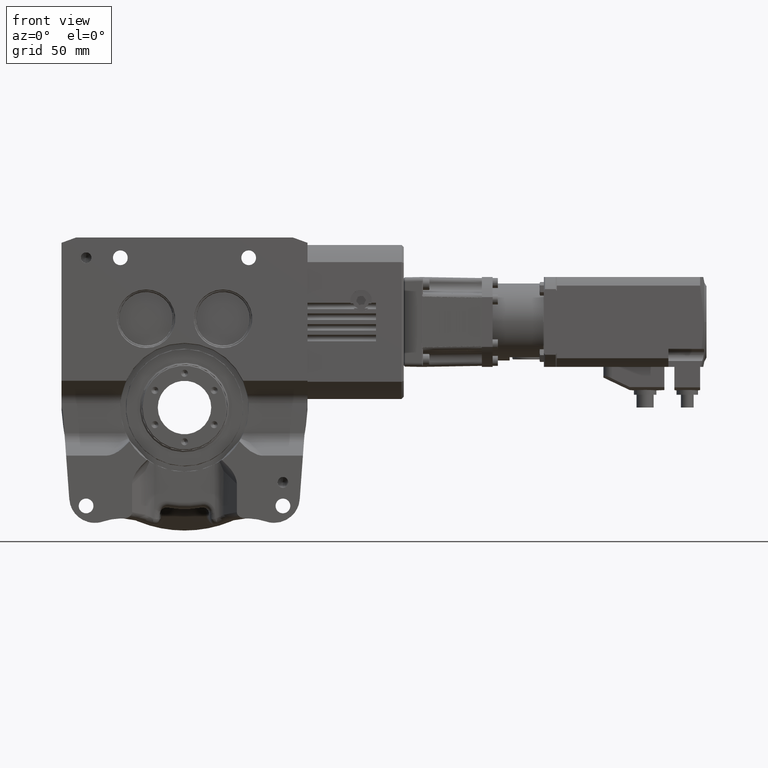
[diagram: clean part render]
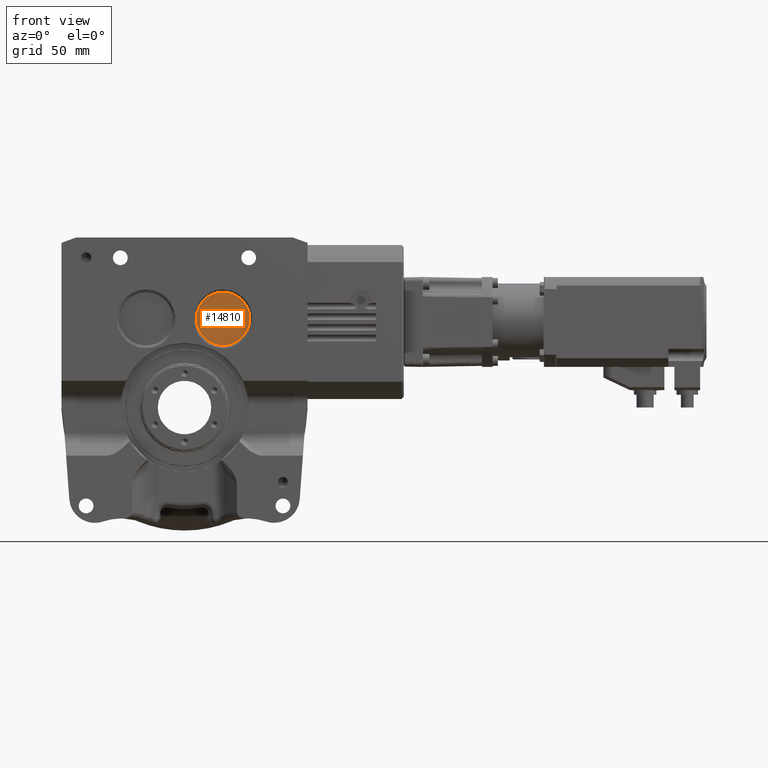
[diagram: same view with one face highlighted and labeled with its STEP entity id]
A machine part, front view. The second image highlights one B-rep face of the part: STEP entity #14810.
In plain terms, the highlighted planar face has unit normal (0, 1, -0).
Its self-contained STEP definition (entity closure, byte-faithful):
#451 = DIRECTION ( 'NONE',  ( 3.398067725436209467E-17, -1.000000000000000000, -1.192263820280585885E-17 ) ) ;
#849 = DIRECTION ( 'NONE',  ( -0.3310776636552075214, 0.000000000000000000, -0.9436035081688756154 ) ) ;
#4381 = PLANE ( 'NONE',  #22889 ) ;
#7247 = VERTEX_POINT ( 'NONE', #22429 ) ;
#8857 = CIRCLE ( 'NONE', #49695, 12.50000000000000355 ) ;
#10304 = EDGE_LOOP ( 'NONE', ( #21530, #45052 ) ) ;
#11097 = CARTESIAN_POINT ( 'NONE',  ( 18.00000000000000000, -30.00000000000000000, 41.50000000000000000 ) ) ;
#13127 = CARTESIAN_POINT ( 'NONE',  ( 18.00000000000000000, -30.00000000000000000, 41.50000000000000000 ) ) ;
#13720 = CARTESIAN_POINT ( 'NONE',  ( 22.13847079569010035, -30.00000000000000000, 53.29504385211089357 ) ) ;
#14810 = ADVANCED_FACE ( 'NONE', ( #34713 ), #4381, .F. ) ;
#17493 = DIRECTION ( 'NONE',  ( -0.3310776636552075214, 0.000000000000000000, -0.9436035081688756154 ) ) ;
#21530 = ORIENTED_EDGE ( 'NONE', *, *, #63066, .T. ) ;
#22429 = CARTESIAN_POINT ( 'NONE',  ( 13.86152920430989965, -30.00000000000000000, 29.70495614788904959 ) ) ;
#22889 = AXIS2_PLACEMENT_3D ( 'NONE', #13127, #68211, #61413 ) ;
#27418 = CIRCLE ( 'NONE', #74425, 12.50000000000000355 ) ;
#34713 = FACE_OUTER_BOUND ( 'NONE', #10304, .T. ) ;
#37163 = CARTESIAN_POINT ( 'NONE',  ( 18.00000000000000000, -30.00000000000000000, 41.50000000000000000 ) ) ;
#42979 = VERTEX_POINT ( 'NONE', #13720 ) ;
#45052 = ORIENTED_EDGE ( 'NONE', *, *, #67973, .T. ) ;
#49695 = AXIS2_PLACEMENT_3D ( 'NONE', #11097, #78936, #17493 ) ;
#61413 = DIRECTION ( 'NONE',  ( 1.000000000000000000, 0.000000000000000000, 3.816391647148979305E-17 ) ) ;
#63066 = EDGE_CURVE ( 'NONE', #7247, #42979, #8857, .T. ) ;
#67973 = EDGE_CURVE ( 'NONE', #42979, #7247, #27418, .T. ) ;
#68211 = DIRECTION ( 'NONE',  ( 6.201649366385802458E-50, 1.000000000000000000, -1.625003390576729909E-33 ) ) ;
#74425 = AXIS2_PLACEMENT_3D ( 'NONE', #37163, #451, #849 ) ;
#78936 = DIRECTION ( 'NONE',  ( 3.398067725436209467E-17, -1.000000000000000000, -1.192263820280585885E-17 ) ) ;